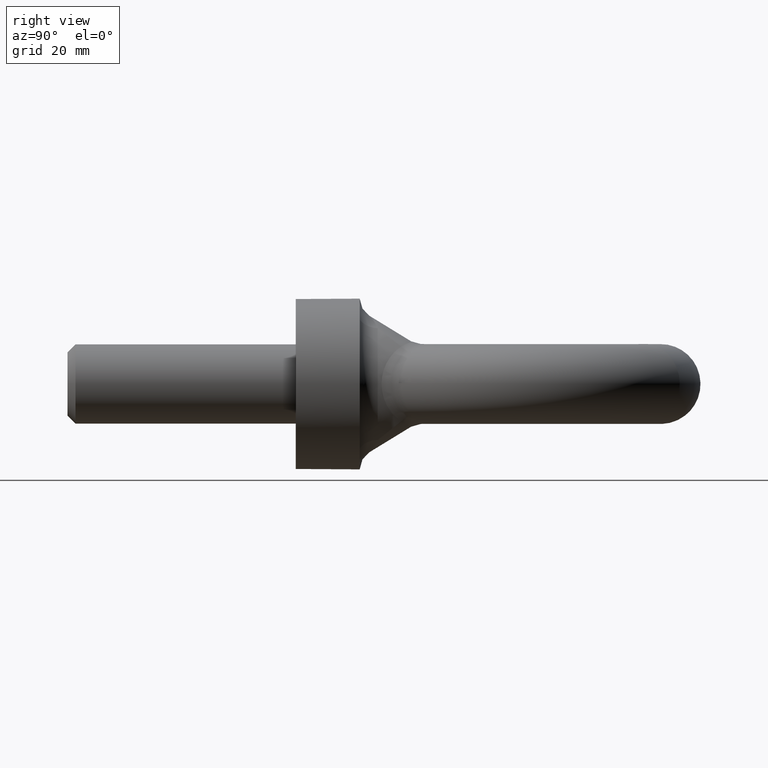
[diagram: clean part render]
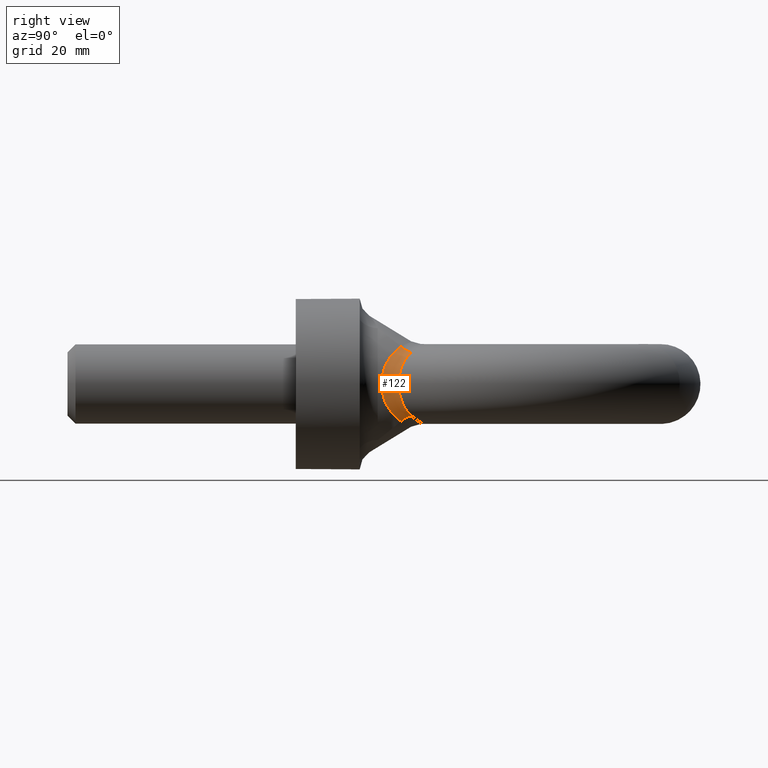
[diagram: same view with one face highlighted and labeled with its STEP entity id]
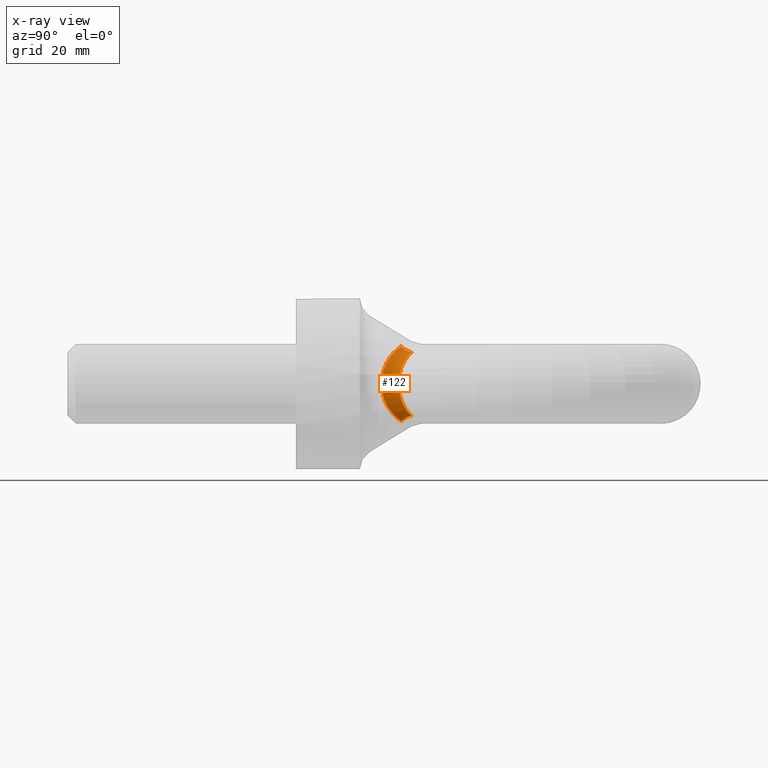
[diagram: x-ray of the same camera — body ghosted, the highlighted face saturated]
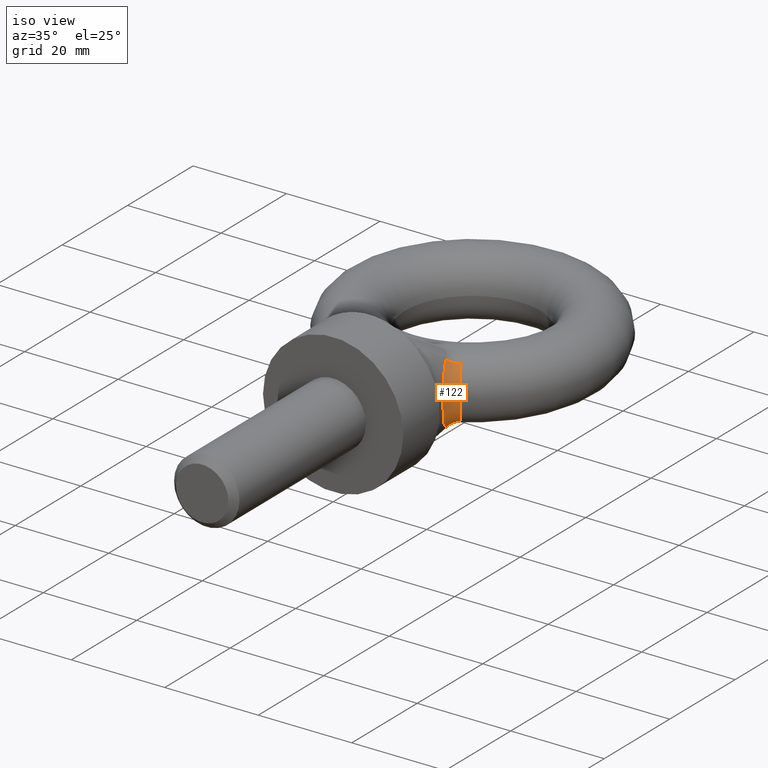
[diagram: same view with one face highlighted and labeled with its STEP entity id]
A machine part, right view. The second image highlights one B-rep face of the part: STEP entity #122.
The next image is the same camera in x-ray: the body ghosted, the highlighted face saturated — about 0% of this face is hidden behind the body in this view.
A second angle (iso view) of the same face is appended — the face is thin or edge-on in the first view.
In plain terms, the highlighted face is a freeform B-spline surface patch.
Its self-contained STEP definition (entity closure, byte-faithful):
#91=(
BOUNDED_SURFACE()
B_SPLINE_SURFACE(3,2,((#1053,#1054,#1055),(#1056,#1057,#1058),(#1059,#1060,
#1061),(#1062,#1063,#1064),(#1065,#1066,#1067),(#1068,#1069,#1070),(#1071,
#1072,#1073),(#1074,#1075,#1076),(#1077,#1078,#1079),(#1080,#1081,#1082)),
 .UNSPECIFIED.,.F.,.F.,.F.)
B_SPLINE_SURFACE_WITH_KNOTS((4,2,2,2,4),(3,3),(0.,0.25,0.5,0.75,1.),(0.,
1.),.UNSPECIFIED.)
GEOMETRIC_REPRESENTATION_ITEM()
RATIONAL_B_SPLINE_SURFACE(((1.,0.912929602145513,1.),(1.,0.904041833663692,
1.),(1.,0.892572315516918,1.),(1.,0.875229630332064,1.),(1.,0.869753333765576,
1.),(1.,0.869791812712309,1.),(1.,0.87532349452973,1.),(1.,0.892559792937643,
1.),(1.,0.904240068976629,1.),(1.,0.912929602145513,1.)))
REPRESENTATION_ITEM('')
SURFACE()
);
#122=ADVANCED_FACE('',(#153),#91,.T.);
#153=FACE_OUTER_BOUND('',#185,.T.);
#185=EDGE_LOOP('',(#324,#325,#326,#327));
#198=B_SPLINE_CURVE_WITH_KNOTS('',3,(#635,#636,#637,#638,#639,#640,#641,
#642,#643,#644),.UNSPECIFIED.,.F.,.F.,(4,2,2,2,4),(0.,0.25,0.5,0.75,1.),
 .UNSPECIFIED.);
#212=B_SPLINE_CURVE_WITH_KNOTS('',3,(#872,#873,#874,#875,#876,#877,#878,
#879,#880,#881),.UNSPECIFIED.,.F.,.F.,(4,2,2,2,4),(0.,0.25,0.5,0.75,1.),
 .UNSPECIFIED.);
#238=CIRCLE('',#510,3.5);
#240=CIRCLE('',#512,3.5);
#324=ORIENTED_EDGE('',*,*,#454,.T.);
#325=ORIENTED_EDGE('',*,*,#409,.F.);
#326=ORIENTED_EDGE('',*,*,#456,.F.);
#327=ORIENTED_EDGE('',*,*,#442,.F.);
#370=VERTEX_POINT('',#629);
#373=VERTEX_POINT('',#634);
#398=VERTEX_POINT('',#882);
#399=VERTEX_POINT('',#883);
#409=EDGE_CURVE('',#373,#370,#198,.T.);
#442=EDGE_CURVE('',#398,#399,#212,.T.);
#454=EDGE_CURVE('',#398,#370,#238,.T.);
#456=EDGE_CURVE('',#399,#373,#240,.T.);
#510=AXIS2_PLACEMENT_3D('',#1014,#597,#598);
#512=AXIS2_PLACEMENT_3D('',#1052,#601,#602);
#597=DIRECTION('',(-0.355733031700033,0.70852321467415,0.609466048623966));
#598=DIRECTION('',(0.,-0.652122967206106,0.758113207669082));
#601=DIRECTION('',(0.355733031700033,-0.70852321467415,0.609466048623966));
#602=DIRECTION('',(0.,-0.652122967206106,-0.758113207669082));
#629=CARTESIAN_POINT('',(11.2274322267532,18.45436052441,6.55322558696586));
#634=CARTESIAN_POINT('',(11.2274322267532,18.45436052441,-6.55322558696586));
#635=CARTESIAN_POINT('',(11.2274322267532,18.45436052441,-6.55322558696586));
#636=CARTESIAN_POINT('',(11.6432436984285,17.4032050668748,-5.84082906476669));
#637=CARTESIAN_POINT('',(12.1000679589675,16.5463870931979,-4.896178420104));
#638=CARTESIAN_POINT('',(12.7824914631463,15.358487563412,-2.64426166022128));
#639=CARTESIAN_POINT('',(12.9991042175195,15.0331284639448,-1.32852757985561));
#640=CARTESIAN_POINT('',(13.0008898328925,15.0303339555195,1.31093842012675));
#641=CARTESIAN_POINT('',(12.7856271319082,15.3532123250481,2.63236326435438));
#642=CARTESIAN_POINT('',(12.0997896312851,16.5466892984087,4.89864148416212));
#643=CARTESIAN_POINT('',(11.6433565977193,17.4029196617965,5.84063563801547));
#644=CARTESIAN_POINT('',(11.2274322267532,18.45436052441,6.55322558696586));
#872=CARTESIAN_POINT('',(13.1658812731394,20.2948465127557,5.54503703512496));
#873=CARTESIAN_POINT('',(13.529892104344,19.52081818958,4.88884919662904));
#874=CARTESIAN_POINT('',(13.9425796697594,18.965487287297,4.04541109530547));
#875=CARTESIAN_POINT('',(14.5315590313684,18.2188126527358,2.12622467167943));
#876=CARTESIAN_POINT('',(14.7051211267523,18.0353393761413,1.05900274885675));
#877=CARTESIAN_POINT('',(14.7038157129092,18.0368028946574,-1.07165763700157));
#878=CARTESIAN_POINT('',(14.52831178962,18.222758561639,-2.13841809478654));
#879=CARTESIAN_POINT('',(13.9427578500981,18.9654330575488,-4.04320971437735));
#880=CARTESIAN_POINT('',(13.5302431490205,19.5200717323347,-4.88821638236162));
#881=CARTESIAN_POINT('',(13.1658812731394,20.2948465127557,-5.54503703512496));
#882=CARTESIAN_POINT('',(13.1658812731394,20.2948465127557,5.54503703512496));
#883=CARTESIAN_POINT('',(13.1658812731394,20.2948465127557,-5.54503703512496));
#1014=CARTESIAN_POINT('',(14.2502024416483,18.45436052441,8.31755555268744));
#1052=CARTESIAN_POINT('',(14.2502024416483,18.45436052441,-8.31755555268744));
#1053=CARTESIAN_POINT('',(11.2274322267532,18.45436052441,6.55322558696586));
#1054=CARTESIAN_POINT('',(11.786264351262,19.5585101787935,5.59579634532112));
#1055=CARTESIAN_POINT('',(13.1658812731394,20.2948465127557,5.54503703512496));
#1056=CARTESIAN_POINT('',(11.683339301169,17.301844928293,5.77213454839671));
#1057=CARTESIAN_POINT('',(12.1206395266644,18.6402850846469,4.86813527047445));
#1058=CARTESIAN_POINT('',(13.53271916413,19.5148067797939,4.88375297953889));
#1059=CARTESIAN_POINT('',(12.1463718588341,16.4615547833355,4.78147868993403));
#1060=CARTESIAN_POINT('',(12.4447394287026,18.0261956404045,3.9726116877295));
#1061=CARTESIAN_POINT('',(13.9424258411662,18.9656871367587,4.04586658384968));
#1062=CARTESIAN_POINT('',(12.8095162698047,15.3161734154099,2.51260437175825));
#1063=CARTESIAN_POINT('',(12.8860647805938,17.203601468982,2.03453792788837));
#1064=CARTESIAN_POINT('',(14.5316267231085,18.2187220033977,2.12604985296686));
#1065=CARTESIAN_POINT('',(13.000686976338,15.0306514290146,1.2514648643477));
#1066=CARTESIAN_POINT('',(13.0004282162025,17.0166653737723,1.01578741137733));
#1067=CARTESIAN_POINT('',(14.7050894988679,18.0353748345329,1.05893180829399));
#1068=CARTESIAN_POINT('',(12.9993091285177,15.0328077752221,-1.26569678227374));
#1069=CARTESIAN_POINT('',(12.9995693748696,17.0181409695655,-1.02729370461519));
#1070=CARTESIAN_POINT('',(14.7038477069766,18.0367670257329,-1.07097420038526));
#1071=CARTESIAN_POINT('',(12.805999535976,15.322061257555,-2.52641440418869));
#1072=CARTESIAN_POINT('',(12.8837356338531,17.2078229072098,-2.04633333337599));
#1073=CARTESIAN_POINT('',(14.5284862724607,18.2225494988005,-2.13773526478993));
#1074=CARTESIAN_POINT('',(12.1467779337091,16.4610405443381,-4.77830301323246));
#1075=CARTESIAN_POINT('',(12.4449469537019,18.0259269712395,-3.97015633982296));
#1076=CARTESIAN_POINT('',(13.9428025599943,18.9653641166676,-4.04317947302797));
#1077=CARTESIAN_POINT('',(11.6750366613302,17.3228336854529,-5.78635919622196));
#1078=CARTESIAN_POINT('',(12.1145003952675,18.6571437072846,-4.88149513408518));
#1079=CARTESIAN_POINT('',(13.5256752816707,19.5297848092291,-4.89645070687395));
#1080=CARTESIAN_POINT('',(11.2274322267532,18.45436052441,-6.55322558696586));
#1081=CARTESIAN_POINT('',(11.786264351262,19.5585101787935,-5.59579634532112));
#1082=CARTESIAN_POINT('',(13.1658812731394,20.2948465127557,-5.54503703512496));